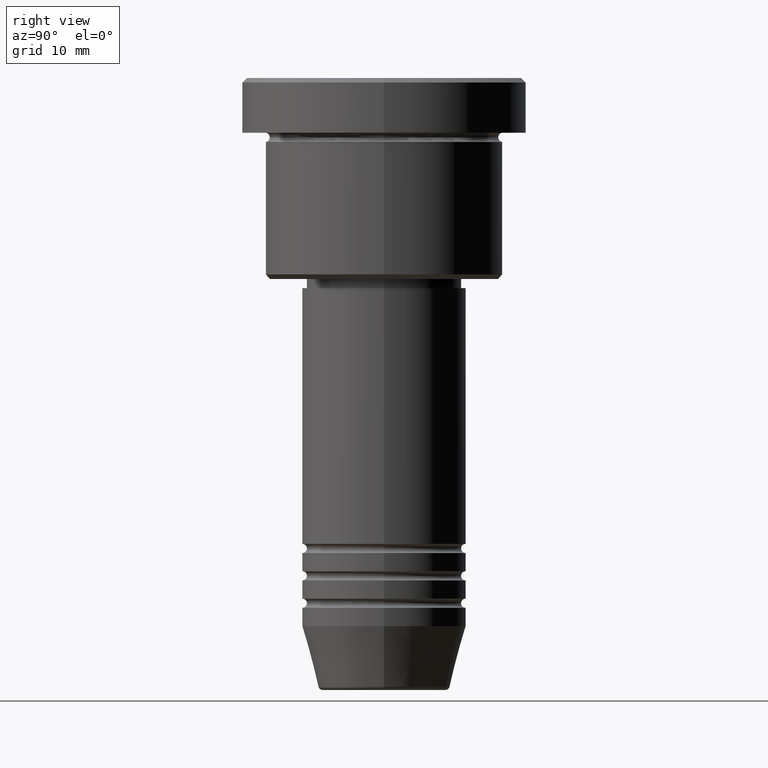
[diagram: clean part render]
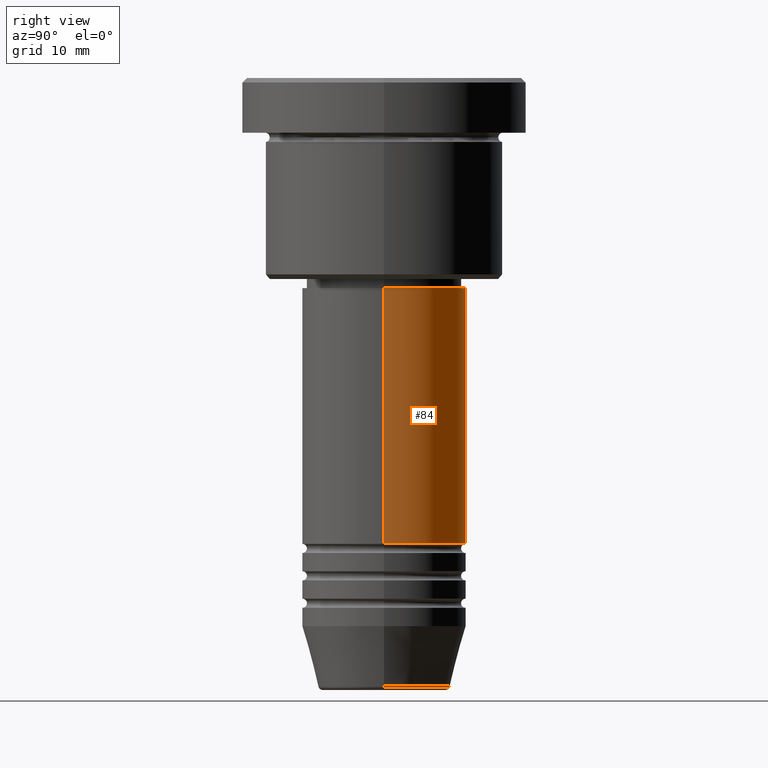
[diagram: same view with one face highlighted and labeled with its STEP entity id]
A machine part, right view. The second image highlights one B-rep face of the part: STEP entity #84.
In plain terms, the highlighted cylindrical surface (partial cylindrical patch) has radius 9 mm, axis along (-0, -0, 1).
Its self-contained STEP definition (entity closure, byte-faithful):
#82 = CARTESIAN_POINT ( 'NONE',  ( 0.000000000000000000, 0.000000000000000000, -23.00000000000000000 ) ) ;
#84 = ADVANCED_FACE ( 'NONE', ( #1139 ), #587, .T. ) ;
#92 = ORIENTED_EDGE ( 'NONE', *, *, #1018, .F. ) ;
#118 = ORIENTED_EDGE ( 'NONE', *, *, #879, .T. ) ;
#144 = VECTOR ( 'NONE', #833, 1000.000000000000000 ) ;
#147 = EDGE_LOOP ( 'NONE', ( #541, #118, #775, #92 ) ) ;
#203 = AXIS2_PLACEMENT_3D ( 'NONE', #897, #431, #799 ) ;
#263 = DIRECTION ( 'NONE',  ( 1.000000000000000000, 0.000000000000000000, 0.000000000000000000 ) ) ;
#302 = CARTESIAN_POINT ( 'NONE',  ( 9.000000000000000000, 0.000000000000000000, -23.00000000000000000 ) ) ;
#335 = CARTESIAN_POINT ( 'NONE',  ( -9.000000000000000000, 1.102182119232617714E-15, -23.00000000000000000 ) ) ;
#431 = DIRECTION ( 'NONE',  ( -0.000000000000000000, -0.000000000000000000, 1.000000000000000000 ) ) ;
#466 = CARTESIAN_POINT ( 'NONE',  ( -9.000000000000000000, 1.102182119232617714E-15, 0.000000000000000000 ) ) ;
#478 = VERTEX_POINT ( 'NONE', #302 ) ;
#518 = CARTESIAN_POINT ( 'NONE',  ( 9.000000000000000000, 0.000000000000000000, -50.99999999999997868 ) ) ;
#541 = ORIENTED_EDGE ( 'NONE', *, *, #716, .T. ) ;
#555 = LINE ( 'NONE', #466, #144 ) ;
#562 = CARTESIAN_POINT ( 'NONE',  ( -9.000000000000000000, 1.102182119232617714E-15, -50.99999999999997868 ) ) ;
#572 = LINE ( 'NONE', #962, #694 ) ;
#581 = CIRCLE ( 'NONE', #203, 9.000000000000000000 ) ;
#587 = CYLINDRICAL_SURFACE ( 'NONE', #1001, 9.000000000000000000 ) ;
#591 = DIRECTION ( 'NONE',  ( -0.000000000000000000, -0.000000000000000000, 1.000000000000000000 ) ) ;
#619 = DIRECTION ( 'NONE',  ( -0.000000000000000000, -0.000000000000000000, 1.000000000000000000 ) ) ;
#626 = EDGE_CURVE ( 'NONE', #478, #643, #964, .T. ) ;
#643 = VERTEX_POINT ( 'NONE', #335 ) ;
#651 = VERTEX_POINT ( 'NONE', #518 ) ;
#694 = VECTOR ( 'NONE', #619, 1000.000000000000000 ) ;
#716 = EDGE_CURVE ( 'NONE', #651, #852, #581, .T. ) ;
#770 = AXIS2_PLACEMENT_3D ( 'NONE', #82, #1172, #263 ) ;
#775 = ORIENTED_EDGE ( 'NONE', *, *, #626, .F. ) ;
#782 = DIRECTION ( 'NONE',  ( 1.000000000000000000, 0.000000000000000000, 0.000000000000000000 ) ) ;
#799 = DIRECTION ( 'NONE',  ( 1.000000000000000000, 0.000000000000000000, 0.000000000000000000 ) ) ;
#833 = DIRECTION ( 'NONE',  ( -0.000000000000000000, -0.000000000000000000, 1.000000000000000000 ) ) ;
#852 = VERTEX_POINT ( 'NONE', #562 ) ;
#879 = EDGE_CURVE ( 'NONE', #852, #643, #555, .T. ) ;
#897 = CARTESIAN_POINT ( 'NONE',  ( 0.000000000000000000, 0.000000000000000000, -50.99999999999997868 ) ) ;
#962 = CARTESIAN_POINT ( 'NONE',  ( 9.000000000000000000, 0.000000000000000000, 0.000000000000000000 ) ) ;
#964 = CIRCLE ( 'NONE', #770, 9.000000000000000000 ) ;
#1001 = AXIS2_PLACEMENT_3D ( 'NONE', #1046, #591, #782 ) ;
#1018 = EDGE_CURVE ( 'NONE', #651, #478, #572, .T. ) ;
#1046 = CARTESIAN_POINT ( 'NONE',  ( 0.000000000000000000, 0.000000000000000000, 0.000000000000000000 ) ) ;
#1139 = FACE_OUTER_BOUND ( 'NONE', #147, .T. ) ;
#1172 = DIRECTION ( 'NONE',  ( -0.000000000000000000, -0.000000000000000000, 1.000000000000000000 ) ) ;